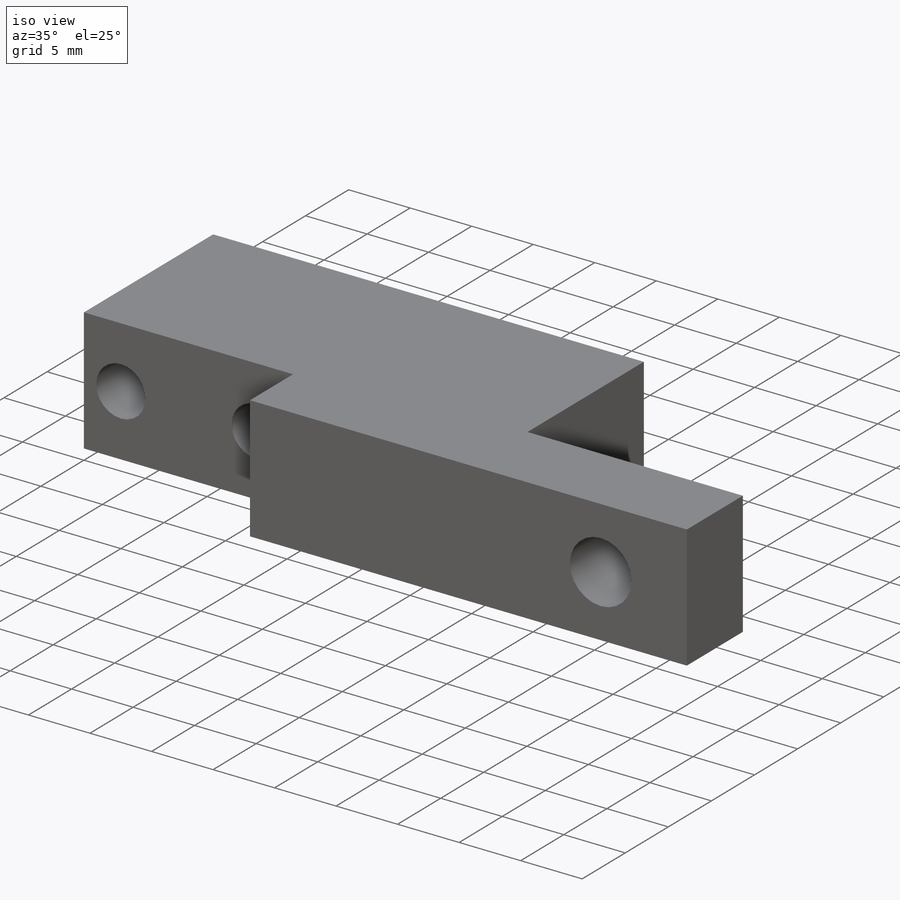
[diagram: iso view]
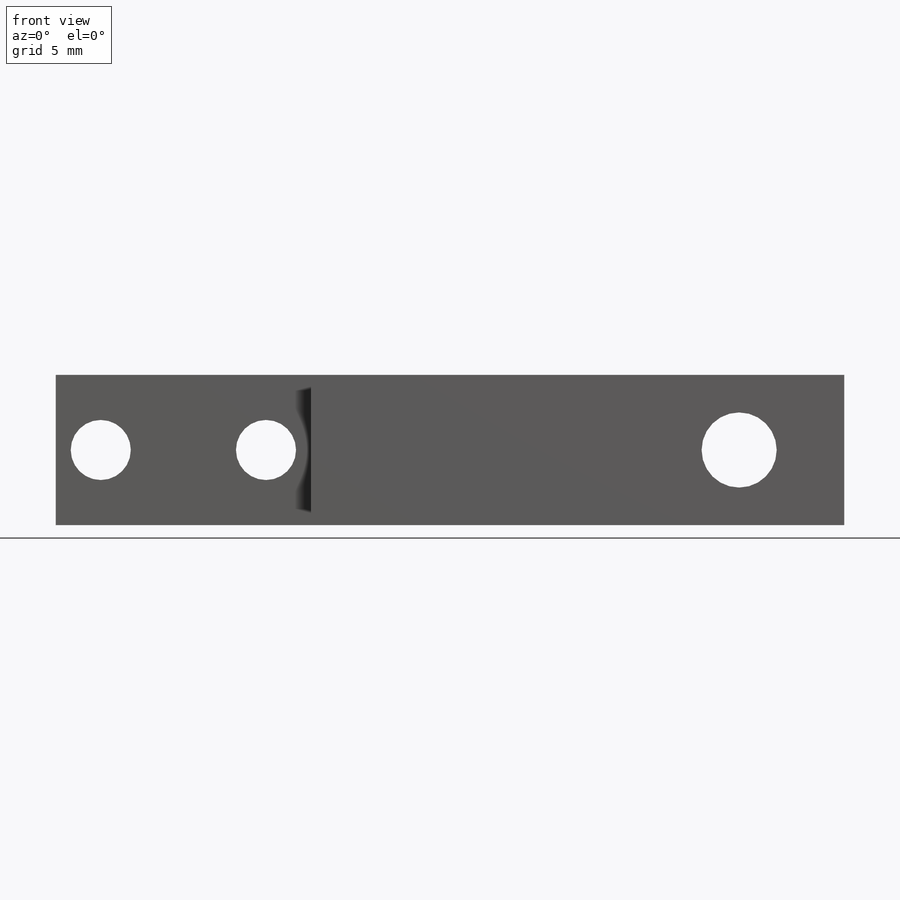
[diagram: front view]
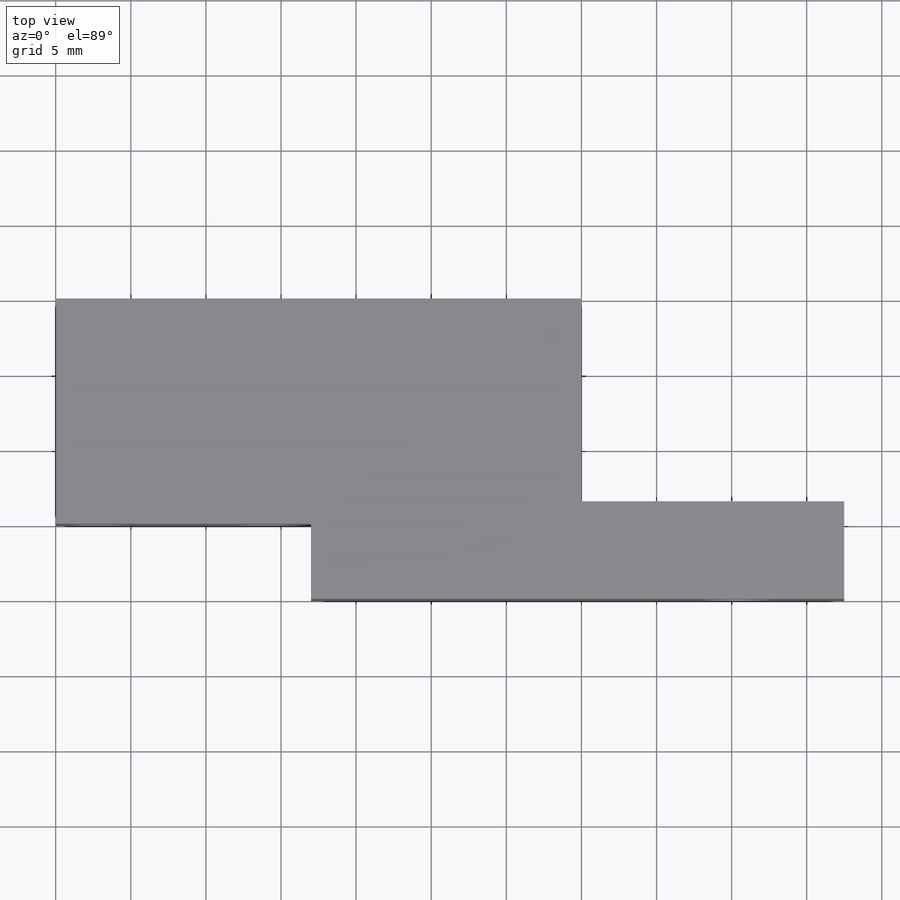
[diagram: top view]
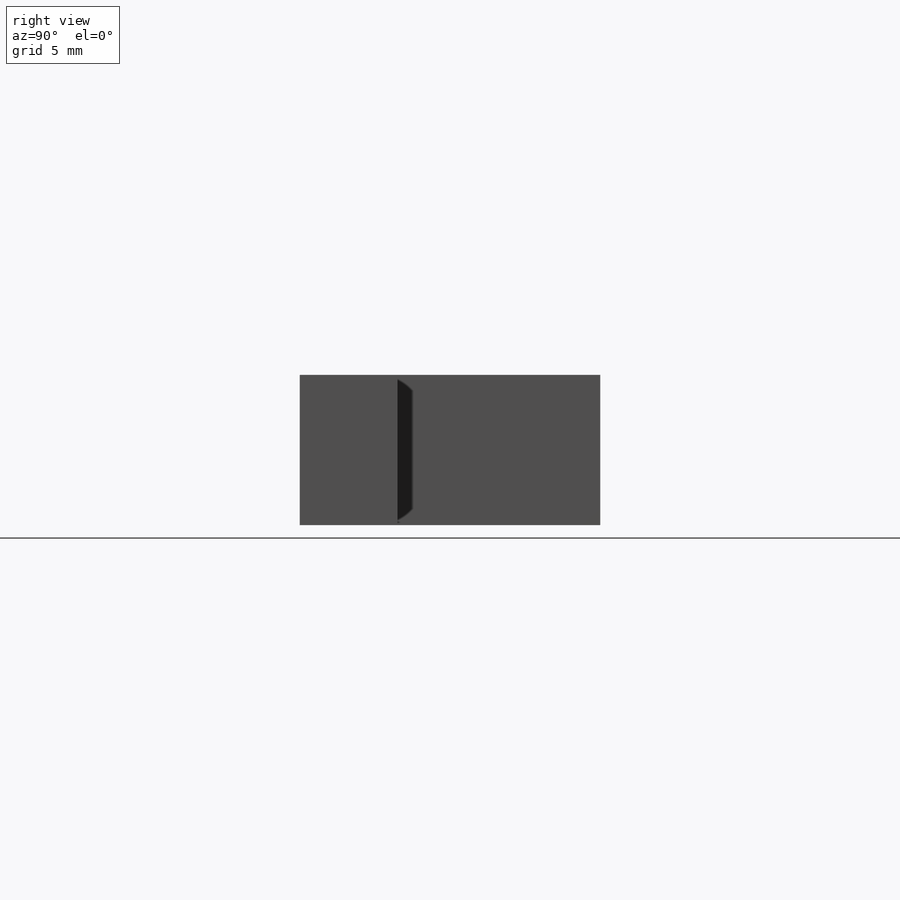
[diagram: right view]
SOLIDWORKS PART (.sldprt)
format: sldprt  version: not decoded by parser v0  size: 169,984 bytes
history: native  units: mm
features: sketch x4, plane x3, cut_extrude x3, material x1, extrude x1 (+13 scaffold rows collapsed)
feature tree (25):
  scaffold x13  (default folders/planes/origin — collapsed)
  material  "Matériau <non spécifié>"
  plane  "Plan de face"
  plane  "Plan de dessus"
  plane  "Plan de droite"
  sketch  "Esquisse1"  dims[D1=52.5mm]
  extrude  "Extrusion1"  Depth=20mm
  sketch  "Esquisse2"  dims[c1.D1=10.0mm c1.D2=17.0mm c2.D1=13.5mm]
  sketch  "Esquisse3"  dims[D1=~1.034762mm]
  cut_extrude  "Extrusion3"  [1 undecoded]
  sketch  "Esquisse4"  dims[D1=8.5mm]
  cut_extrude  "Extrusion4"  Depth=20mm
  cut_extrude  "Extrusion5"  Depth=20mm
decode coverage: 7 of 8 modeling features carry decoded parameters
note: ~ marks probable driven/reference dimensions
note: 1 parameter value undecoded
note: suppression state not decoded; provenance and decode notes live in map.json
